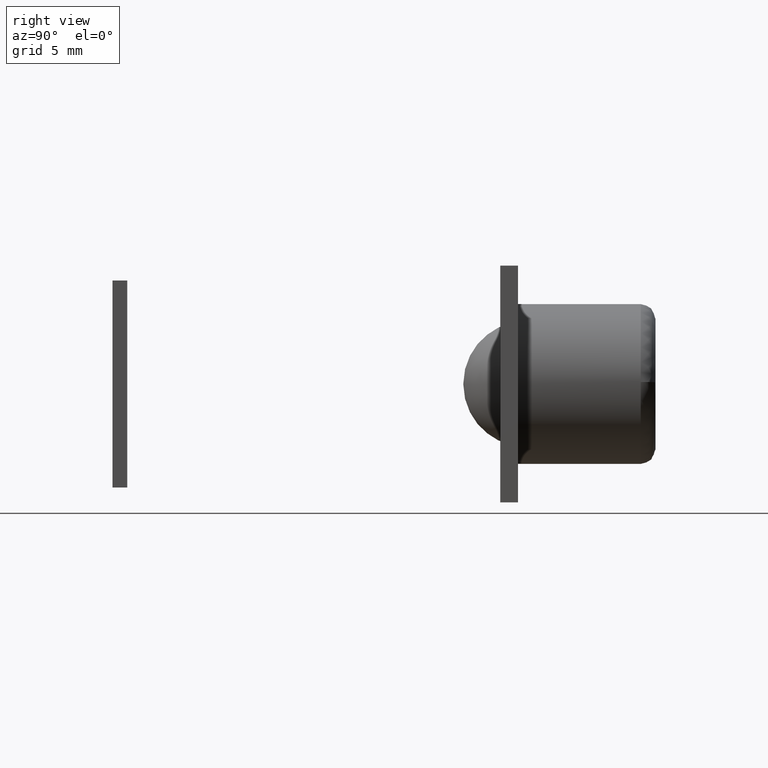
[diagram: clean part render]
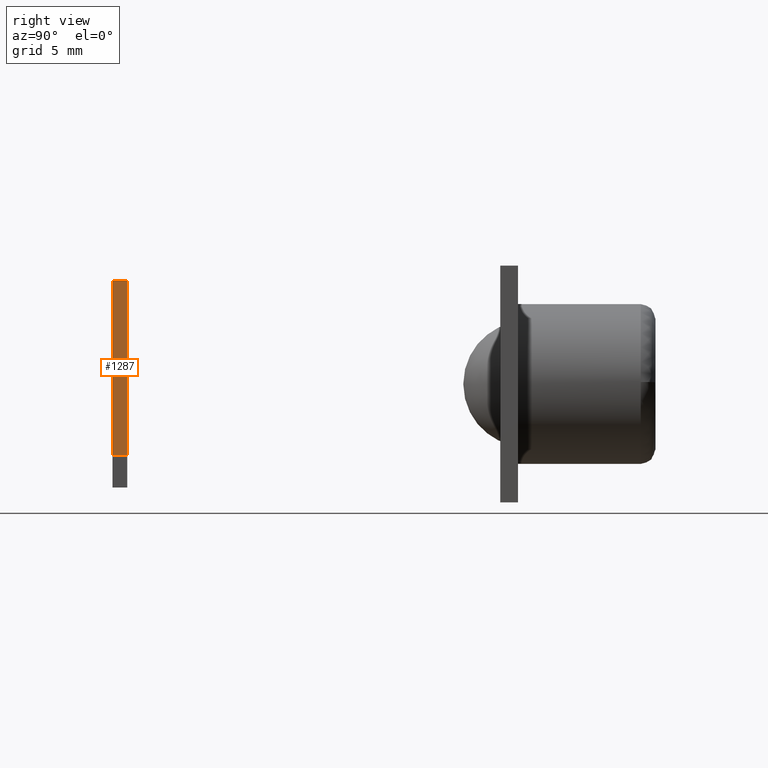
[diagram: same view with one face highlighted and labeled with its STEP entity id]
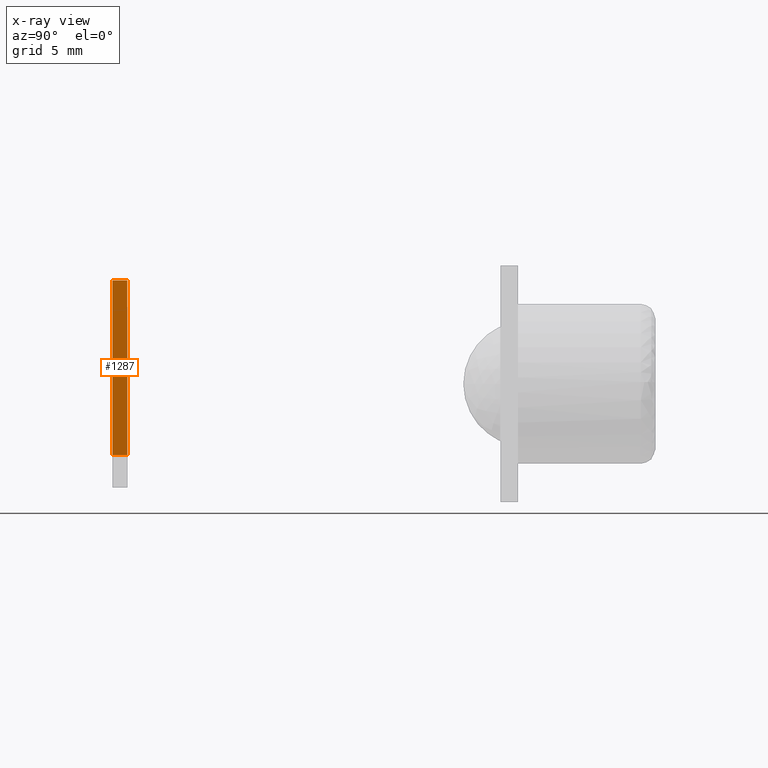
[diagram: x-ray of the same camera — body ghosted, the highlighted face saturated]
A machine part, right view. The second image highlights one B-rep face of the part: STEP entity #1287.
The next image is the same camera in x-ray: the body ghosted, the highlighted face saturated — about 0% of this face is hidden behind the body in this view.
In plain terms, the highlighted face is a freeform B-spline surface patch.
Its self-contained STEP definition (entity closure, byte-faithful):
#1237=CARTESIAN_POINT('',(76.081085000000101,-24.781389287852100,7.0));
#1238=VERTEX_POINT('',#1237);
#1245=CARTESIAN_POINT('',(76.081085000000101,-23.781389287852249,7.0));
#1246=VERTEX_POINT('',#1245);
#1252=CARTESIAN_POINT('',(76.081085000000101,-23.781389287852249,7.0));
#1253=CARTESIAN_POINT('',(76.081085000000101,-24.781389287852100,7.0));
#1254=QUASI_UNIFORM_CURVE('',1,(#1252,#1253),.UNSPECIFIED.,.F.,.U.);
#1255=EDGE_CURVE('',#1246,#1238,#1254,.T.);
#1260=CARTESIAN_POINT('',(76.081085000000101,-24.831339238977481,7.589410126979304));
#1261=CARTESIAN_POINT('',(76.081085000000101,-24.831339238977481,-5.389413443480049));
#1262=CARTESIAN_POINT('',(76.081085000000101,-23.731439265201299,7.589410126979304));
#1263=CARTESIAN_POINT('',(76.081085000000101,-23.731439265201299,-5.389413443480049));
#1264=B_SPLINE_SURFACE_WITH_KNOTS('',1,1,((#1260,#1262),(#1261,#1263)),.UNSPECIFIED.,.F.,.F.,.U.,(2,2),(2,2),(0.0,12.978823570459349),(0.041708374062181,0.958291685542464),.UNSPECIFIED.);
#1265=CARTESIAN_POINT('',(76.081085000000101,-24.781389287852100,-4.800002999999999));
#1266=VERTEX_POINT('',#1265);
#1267=CARTESIAN_POINT('',(76.081085000000101,-24.781389287852100,-4.800002999999999));
#1268=CARTESIAN_POINT('',(76.081085000000101,-24.781389287852100,7.0));
#1269=QUASI_UNIFORM_CURVE('',1,(#1267,#1268),.UNSPECIFIED.,.F.,.U.);
#1270=EDGE_CURVE('',#1266,#1238,#1269,.T.);
#1271=ORIENTED_EDGE('',*,*,#1270,.T.);
#1272=ORIENTED_EDGE('',*,*,#1255,.F.);
#1273=CARTESIAN_POINT('',(76.081085000000101,-23.781389287852249,-4.800002999999999));
#1274=VERTEX_POINT('',#1273);
#1275=CARTESIAN_POINT('',(76.081085000000101,-23.781389287852249,-4.800002999999999));
#1276=CARTESIAN_POINT('',(76.081085000000101,-23.781389287852249,7.0));
#1277=QUASI_UNIFORM_CURVE('',1,(#1275,#1276),.UNSPECIFIED.,.F.,.U.);
#1278=EDGE_CURVE('',#1274,#1246,#1277,.T.);
#1279=ORIENTED_EDGE('',*,*,#1278,.F.);
#1280=CARTESIAN_POINT('',(76.081085000000101,-23.781389287852249,-4.800002999999999));
#1281=CARTESIAN_POINT('',(76.081085000000101,-24.781389287852100,-4.800002999999999));
#1282=QUASI_UNIFORM_CURVE('',1,(#1280,#1281),.UNSPECIFIED.,.F.,.U.);
#1283=EDGE_CURVE('',#1274,#1266,#1282,.T.);
#1284=ORIENTED_EDGE('',*,*,#1283,.T.);
#1285=EDGE_LOOP('',(#1271,#1272,#1279,#1284));
#1286=FACE_OUTER_BOUND('',#1285,.T.);
#1287=ADVANCED_FACE('',(#1286),#1264,.F.);